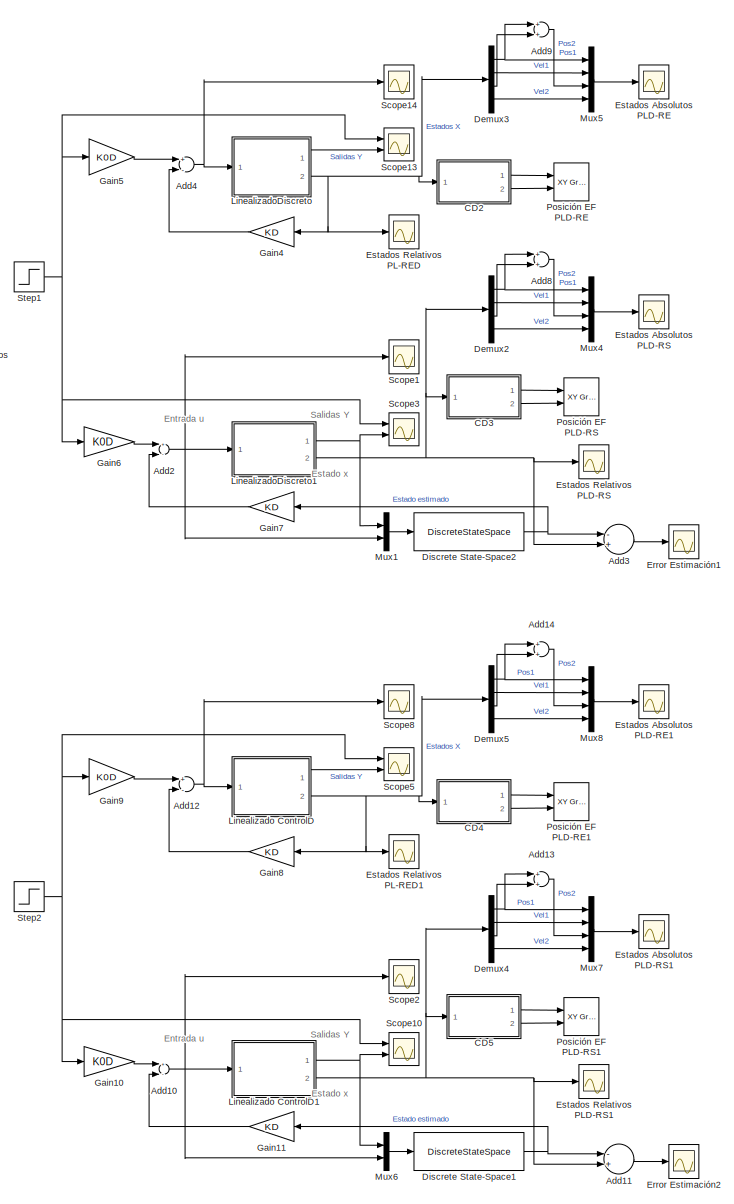
[diagram: root canvas - part 1/2, right side, full height]
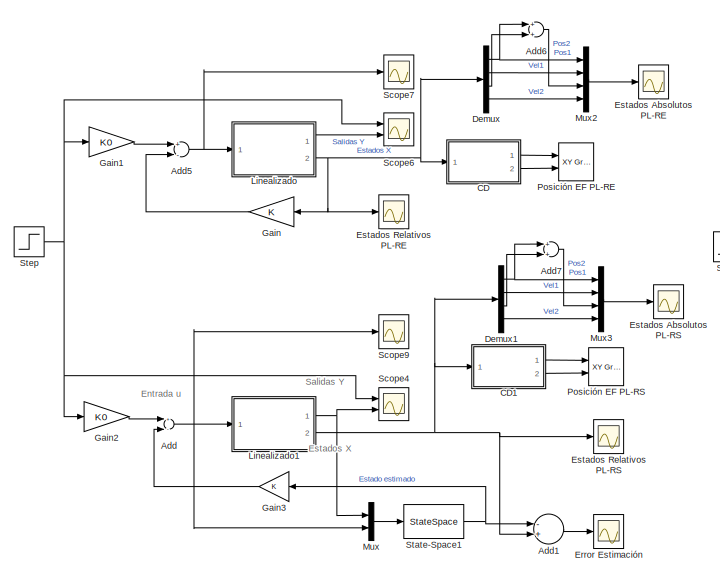
[diagram: root canvas - part 2/2, top left region]
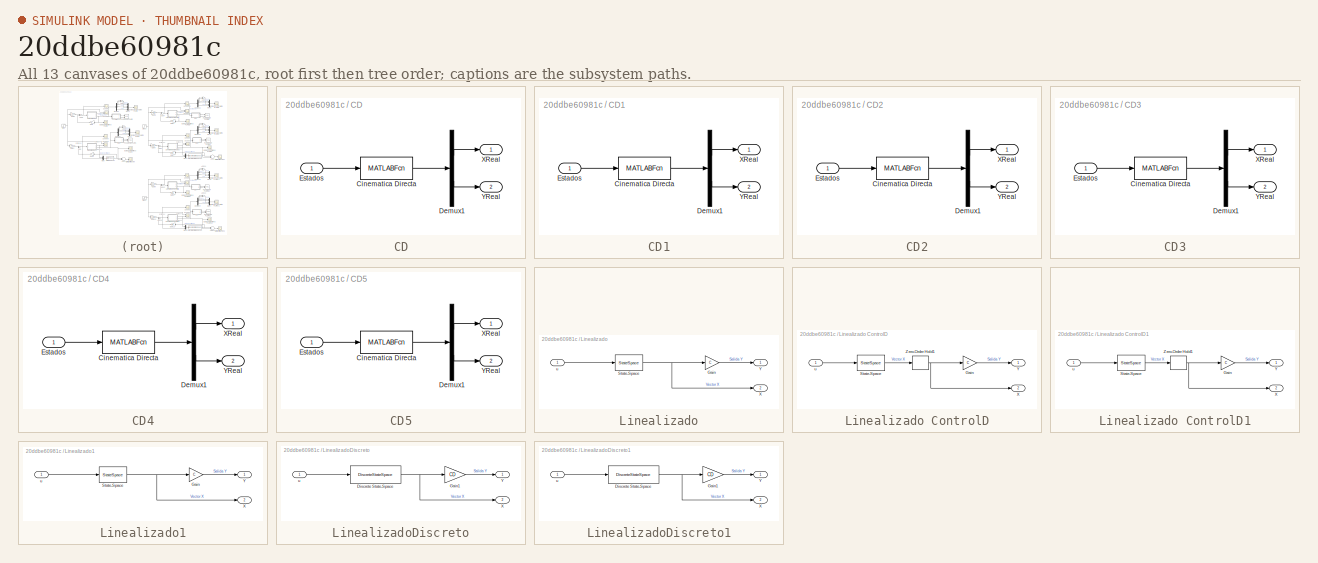
[diagram: thumbnail index - all 13 canvases of the model, root first then tree order]
MODEL slx_20ddbe60981c
KIND model
CONFIG AbsTol = auto
CONFIG EnableMultiTasking = off
CONFIG FixedStep = 0.01
CONFIG MaxStep = auto
CONFIG MinStep = auto
CONFIG RelTol = 1e-3
CONFIG SampleTimeConstraint = Unconstrained
CONFIG Solver = ode4
CONFIG SolverName = ode4
CONFIG StartTime = 0.0
CONFIG StopTime = ts
BLOCK [Sum] Add
  InputSameDT = off
  Inputs = +-
  OutDataTypeStr = Inherit: Inherit via internal rule
  Ports = [2, 1]
  SaturateOnIntegerOverflow = off
BLOCK [Sum] Add1
  InputSameDT = off
  Inputs = -+
  OutDataTypeStr = Inherit: Inherit via internal rule
  Ports = [2, 1]
  SaturateOnIntegerOverflow = off
BLOCK [Sum] Add10
  InputSameDT = off
  Inputs = +-
  OutDataTypeStr = Inherit: Inherit via internal rule
  Ports = [2, 1]
  SaturateOnIntegerOverflow = off
BLOCK [Sum] Add11
  InputSameDT = off
  Inputs = -+
  OutDataTypeStr = Inherit: Inherit via internal rule
  Ports = [2, 1]
  SaturateOnIntegerOverflow = off
BLOCK [Sum] Add12
  InputSameDT = off
  Inputs = +-
  OutDataTypeStr = Inherit: Inherit via internal rule
  Ports = [2, 1]
  SaturateOnIntegerOverflow = off
BLOCK [Sum] Add13
  InputSameDT = off
  OutDataTypeStr = Inherit: Inherit via internal rule
  Ports = [2, 1]
  SaturateOnIntegerOverflow = off
BLOCK [Sum] Add14
  InputSameDT = off
  OutDataTypeStr = Inherit: Inherit via internal rule
  Ports = [2, 1]
  SaturateOnIntegerOverflow = off
BLOCK [Sum] Add2
  InputSameDT = off
  Inputs = +-
  OutDataTypeStr = Inherit: Inherit via internal rule
  Ports = [2, 1]
  SaturateOnIntegerOverflow = off
BLOCK [Sum] Add3
  InputSameDT = off
  Inputs = -+
  OutDataTypeStr = Inherit: Inherit via internal rule
  Ports = [2, 1]
  SaturateOnIntegerOverflow = off
BLOCK [Sum] Add4
  InputSameDT = off
  Inputs = +-
  OutDataTypeStr = Inherit: Inherit via internal rule
  Ports = [2, 1]
  SaturateOnIntegerOverflow = off
BLOCK [Sum] Add5
  InputSameDT = off
  Inputs = +-
  OutDataTypeStr = Inherit: Inherit via internal rule
  Ports = [2, 1]
  SaturateOnIntegerOverflow = off
BLOCK [Sum] Add6
  InputSameDT = off
  OutDataTypeStr = Inherit: Inherit via internal rule
  Ports = [2, 1]
  SaturateOnIntegerOverflow = off
BLOCK [Sum] Add7
  InputSameDT = off
  OutDataTypeStr = Inherit: Inherit via internal rule
  Ports = [2, 1]
  SaturateOnIntegerOverflow = off
BLOCK [Sum] Add8
  InputSameDT = off
  OutDataTypeStr = Inherit: Inherit via internal rule
  Ports = [2, 1]
  SaturateOnIntegerOverflow = off
BLOCK [Sum] Add9
  InputSameDT = off
  OutDataTypeStr = Inherit: Inherit via internal rule
  Ports = [2, 1]
  SaturateOnIntegerOverflow = off
BLOCK [SubSystem] CD
  Ports = [1, 2]
  RequestExecContextInheritance = off
  TreatAsAtomicUnit = on
BLOCK [MATLABFcn] CD/Cinematica Directa
  MATLABFcn = CinematicaDirecta
  OutputDimensions = 2
  Ports = [1, 1]
BLOCK [Demux] CD/Demux1
  DisplayOption = bar
  Outputs = 2
  Ports = [1, 2]
BLOCK [Inport] CD/Estados
  IconDisplay = Port number
BLOCK [Outport] CD/XReal
  IconDisplay = Port number
  VectorParamsAs1DForOutWhenUnconnected = off
BLOCK [Outport] CD/YReal
  IconDisplay = Port number
  Port = 2
  VectorParamsAs1DForOutWhenUnconnected = off
BLOCK [SubSystem] CD1
  Ports = [1, 2]
  RequestExecContextInheritance = off
  TreatAsAtomicUnit = on
BLOCK [MATLABFcn] CD1/Cinematica Directa
  MATLABFcn = CinematicaDirecta
  OutputDimensions = 2
  Ports = [1, 1]
BLOCK [Demux] CD1/Demux1
  DisplayOption = bar
  Outputs = 2
  Ports = [1, 2]
BLOCK [Inport] CD1/Estados
  IconDisplay = Port number
BLOCK [Outport] CD1/XReal
  IconDisplay = Port number
  VectorParamsAs1DForOutWhenUnconnected = off
BLOCK [Outport] CD1/YReal
  IconDisplay = Port number
  Port = 2
  VectorParamsAs1DForOutWhenUnconnected = off
BLOCK [SubSystem] CD2
  Ports = [1, 2]
  RequestExecContextInheritance = off
  TreatAsAtomicUnit = on
BLOCK [MATLABFcn] CD2/Cinematica Directa
  MATLABFcn = CinematicaDirecta
  OutputDimensions = 2
  Ports = [1, 1]
BLOCK [Demux] CD2/Demux1
  DisplayOption = bar
  Outputs = 2
  Ports = [1, 2]
BLOCK [Inport] CD2/Estados
  IconDisplay = Port number
BLOCK [Outport] CD2/XReal
  IconDisplay = Port number
  VectorParamsAs1DForOutWhenUnconnected = off
BLOCK [Outport] CD2/YReal
  IconDisplay = Port number
  Port = 2
  VectorParamsAs1DForOutWhenUnconnected = off
BLOCK [SubSystem] CD3
  Ports = [1, 2]
  RequestExecContextInheritance = off
  TreatAsAtomicUnit = on
BLOCK [MATLABFcn] CD3/Cinematica Directa
  MATLABFcn = CinematicaDirecta
  OutputDimensions = 2
  Ports = [1, 1]
BLOCK [Demux] CD3/Demux1
  DisplayOption = bar
  Outputs = 2
  Ports = [1, 2]
BLOCK [Inport] CD3/Estados
  IconDisplay = Port number
BLOCK [Outport] CD3/XReal
  IconDisplay = Port number
  VectorParamsAs1DForOutWhenUnconnected = off
BLOCK [Outport] CD3/YReal
  IconDisplay = Port number
  Port = 2
  VectorParamsAs1DForOutWhenUnconnected = off
BLOCK [SubSystem] CD4
  Ports = [1, 2]
  RequestExecContextInheritance = off
  TreatAsAtomicUnit = on
BLOCK [MATLABFcn] CD4/Cinematica Directa
  MATLABFcn = CinematicaDirecta
  OutputDimensions = 2
  Ports = [1, 1]
BLOCK [Demux] CD4/Demux1
  DisplayOption = bar
  Outputs = 2
  Ports = [1, 2]
BLOCK [Inport] CD4/Estados
  IconDisplay = Port number
BLOCK [Outport] CD4/XReal
  IconDisplay = Port number
  VectorParamsAs1DForOutWhenUnconnected = off
BLOCK [Outport] CD4/YReal
  IconDisplay = Port number
  Port = 2
  VectorParamsAs1DForOutWhenUnconnected = off
BLOCK [SubSystem] CD5
  Ports = [1, 2]
  RequestExecContextInheritance = off
  TreatAsAtomicUnit = on
BLOCK [MATLABFcn] CD5/Cinematica Directa
  MATLABFcn = CinematicaDirecta
  OutputDimensions = 2
  Ports = [1, 1]
BLOCK [Demux] CD5/Demux1
  DisplayOption = bar
  Outputs = 2
  Ports = [1, 2]
BLOCK [Inport] CD5/Estados
  IconDisplay = Port number
BLOCK [Outport] CD5/XReal
  IconDisplay = Port number
  VectorParamsAs1DForOutWhenUnconnected = off
BLOCK [Outport] CD5/YReal
  IconDisplay = Port number
  Port = 2
  VectorParamsAs1DForOutWhenUnconnected = off
BLOCK [Demux] Demux
  DisplayOption = bar
  Ports = [1, 4]
BLOCK [Demux] Demux1
  DisplayOption = bar
  Ports = [1, 4]
BLOCK [Demux] Demux2
  DisplayOption = bar
  Ports = [1, 4]
BLOCK [Demux] Demux3
  DisplayOption = bar
  Ports = [1, 4]
BLOCK [Demux] Demux4
  DisplayOption = bar
  Ports = [1, 4]
BLOCK [Demux] Demux5
  DisplayOption = bar
  Ports = [1, 4]
BLOCK [DiscreteStateSpace] Discrete State-Space1
  A = AD-LD*CD
  B = [LD BD]
  C = eye(4)
  D = zeros(4,2)
  InitialCondition = XI
  SampleTime = tm
BLOCK [DiscreteStateSpace] Discrete State-Space2
  A = AD-LD*CD
  B = [LD BD]
  C = eye(4)
  D = zeros(4,2)
  InitialCondition = XI
  SampleTime = tm
BLOCK [Scope] Error Estimación
  Floating = off
  NumInputPorts = 1
  Ports = [1]
  ScopeSpecificationString = Simulink.scopes.TimeScopeBlockCfg('CurrentConfiguration', extmgr.ConfigurationSet(extmgr.Configuration('Core','General UI',true,'FigureColor',[0 0 0]),extmgr.Configuration('Core','Source UI',true),extmgr.Configuration('Sources','WiredSimulink',true,'DataLoggingVariableName','ScopeData6'),extmgr.Configuration('Visuals','Time Domain',true,'SerializedDisplays',{struct('MinYLimReal','-0.000000000007',...<+2144ch>
BLOCK [Scope] Error Estimación1
  Floating = off
  NumInputPorts = 1
  Ports = [1]
  ScopeSpecificationString = Simulink.scopes.TimeScopeBlockCfg('CurrentConfiguration', extmgr.ConfigurationSet(extmgr.Configuration('Core','General UI',true,'FigureColor',[0 0 0]),extmgr.Configuration('Core','Source UI',true),extmgr.Configuration('Sources','WiredSimulink',true,'DataLoggingVariableName','ScopeData7'),extmgr.Configuration('Visuals','Time Domain',true,'SerializedDisplays',{struct('MinYLimReal','-0.000000000005',...<+2144ch>
BLOCK [Scope] Error Estimación2
  Floating = off
  NumInputPorts = 1
  Ports = [1]
  ScopeSpecificationString = Simulink.scopes.TimeScopeBlockCfg('CurrentConfiguration', extmgr.ConfigurationSet(extmgr.Configuration('Core','General UI',true,'FigureColor',[0 0 0]),extmgr.Configuration('Core','Source UI',true),extmgr.Configuration('Sources','WiredSimulink',true,'DataLoggingVariableName','ScopeData2'),extmgr.Configuration('Visuals','Time Domain',true,'SerializedDisplays',{struct('MinYLimReal','-0.13705','MaxYLi...<+2092ch>
BLOCK [Scope] Estados Absolutos PL-RE
  Floating = off
  NumInputPorts = 1
  Ports = [1]
  ScopeSpecificationString = Simulink.scopes.TimeScopeBlockCfg('CurrentConfiguration', extmgr.ConfigurationSet(extmgr.Configuration('Core','General UI',true,'FigureColor',[0 0 0]),extmgr.Configuration('Core','Source UI',true),extmgr.Configuration('Sources','WiredSimulink',true,'DataLoggingVariableName','ScopeData1'),extmgr.Configuration('Visuals','Time Domain',true,'SerializedDisplays',{struct('MinYLimReal','-5.35288','MaxYLi...<+2080ch>
BLOCK [Scope] Estados Absolutos PL-RS
  Floating = off
  NumInputPorts = 1
  Ports = [1]
  ScopeSpecificationString = Simulink.scopes.TimeScopeBlockCfg('CurrentConfiguration', extmgr.ConfigurationSet(extmgr.Configuration('Core','General UI',true,'FigureColor',[0 0 0]),extmgr.Configuration('Core','Source UI',true),extmgr.Configuration('Sources','WiredSimulink',true,'DataLoggingVariableName','ScopeData2'),extmgr.Configuration('Visuals','Time Domain',true,'SerializedDisplays',{struct('MinYLimReal','-1.78593','MaxYLi...<+2080ch>
BLOCK [Scope] Estados Absolutos PLD-RE
  Floating = off
  NumInputPorts = 1
  Ports = [1]
  ScopeSpecificationString = Simulink.scopes.TimeScopeBlockCfg('CurrentConfiguration', extmgr.ConfigurationSet(extmgr.Configuration('Core','General UI',true,'FigureColor',[0 0 0]),extmgr.Configuration('Core','Source UI',true),extmgr.Configuration('Sources','WiredSimulink',true,'DataLoggingVariableName','ScopeData4'),extmgr.Configuration('Visuals','Time Domain',true,'SerializedDisplays',{struct('MinYLimReal','-3.14555','MaxYLi...<+2080ch>
BLOCK [Scope] Estados Absolutos PLD-RE1
  Floating = off
  NumInputPorts = 1
  Ports = [1]
  ScopeSpecificationString = Simulink.scopes.TimeScopeBlockCfg('CurrentConfiguration', extmgr.ConfigurationSet(extmgr.Configuration('Core','General UI',true,'FigureColor',[0 0 0]),extmgr.Configuration('Core','Source UI',true),extmgr.Configuration('Sources','WiredSimulink',true,'DataLoggingVariableName','ScopeData3'),extmgr.Configuration('Visuals','Time Domain',true,'SerializedDisplays',{struct('MinYLimReal','-3.14555','MaxYLi...<+2080ch>
BLOCK [Scope] Estados Absolutos PLD-RS
  Floating = off
  NumInputPorts = 1
  Ports = [1]
  ScopeSpecificationString = Simulink.scopes.TimeScopeBlockCfg('CurrentConfiguration', extmgr.ConfigurationSet(extmgr.Configuration('Core','General UI',true,'FigureColor',[0 0 0]),extmgr.Configuration('Core','Source UI',true),extmgr.Configuration('Sources','WiredSimulink',true,'DataLoggingVariableName','ScopeData3'),extmgr.Configuration('Visuals','Time Domain',true,'SerializedDisplays',{struct('MinYLimReal','-1.05715','MaxYLi...<+2080ch>
BLOCK [Scope] Estados Absolutos PLD-RS1
  Floating = off
  NumInputPorts = 1
  Ports = [1]
  ScopeSpecificationString = Simulink.scopes.TimeScopeBlockCfg('CurrentConfiguration', extmgr.ConfigurationSet(extmgr.Configuration('Core','General UI',true,'FigureColor',[0 0 0]),extmgr.Configuration('Core','Source UI',true),extmgr.Configuration('Sources','WiredSimulink',true,'DataLoggingVariableName','ScopeData4'),extmgr.Configuration('Visuals','Time Domain',true,'SerializedDisplays',{struct('MinYLimReal','-1.05715','MaxYLi...<+2080ch>
BLOCK [Scope] Estados Relativos PL-RE
  Floating = off
  NumInputPorts = 1
  Ports = [1]
  ScopeSpecificationString = Simulink.scopes.TimeScopeBlockCfg('CurrentConfiguration', extmgr.ConfigurationSet(extmgr.Configuration('Core','General UI',true,'FigureColor',[0 0 0]),extmgr.Configuration('Core','Source UI',true),extmgr.Configuration('Sources','WiredSimulink',true,'DataLoggingVariableName','ScopeData1'),extmgr.Configuration('Visuals','Time Domain',true,'SerializedDisplays',{struct('MinYLimReal','-14.56887','MaxYL...<+2114ch>
BLOCK [Scope] Estados Relativos PL-RED
  Floating = off
  NumInputPorts = 1
  Ports = [1]
  ScopeSpecificationString = Simulink.scopes.TimeScopeBlockCfg('CurrentConfiguration', extmgr.ConfigurationSet(extmgr.Configuration('Core','General UI',true,'FigureColor',[0 0 0]),extmgr.Configuration('Core','Source UI',true),extmgr.Configuration('Sources','WiredSimulink',true,'DataLoggingVariableName','ScopeData9'),extmgr.Configuration('Visuals','Time Domain',true,'SerializedDisplays',{struct('MinYLimReal','-36.95739','MaxYL...<+2114ch>
BLOCK [Scope] Estados Relativos PL-RED1
  Floating = off
  NumInputPorts = 1
  Ports = [1]
  ScopeSpecificationString = Simulink.scopes.TimeScopeBlockCfg('CurrentConfiguration', extmgr.ConfigurationSet(extmgr.Configuration('Core','General UI',true,'FigureColor',[0 0 0]),extmgr.Configuration('Core','Source UI',true),extmgr.Configuration('Sources','WiredSimulink',true,'DataLoggingVariableName','ScopeData5'),extmgr.Configuration('Visuals','Time Domain',true,'SerializedDisplays',{struct('MinYLimReal','-36.95739','MaxYL...<+2114ch>
BLOCK [Scope] Estados Relativos PL-RS
  Floating = off
  NumInputPorts = 1
  Ports = [1]
  ScopeSpecificationString = Simulink.scopes.TimeScopeBlockCfg('CurrentConfiguration', extmgr.ConfigurationSet(extmgr.Configuration('Core','General UI',true,'FigureColor',[0 0 0]),extmgr.Configuration('Core','Source UI',true),extmgr.Configuration('Sources','WiredSimulink',true,'DataLoggingVariableName','ScopeData5'),extmgr.Configuration('Visuals','Time Domain',true,'SerializedDisplays',{struct('MinYLimReal','-36.95739','MaxYL...<+2162ch>
BLOCK [Scope] Estados Relativos PLD-RS
  Floating = off
  NumInputPorts = 1
  Ports = [1]
  ScopeSpecificationString = Simulink.scopes.TimeScopeBlockCfg('CurrentConfiguration', extmgr.ConfigurationSet(extmgr.Configuration('Core','General UI',true,'FigureColor',[0 0 0]),extmgr.Configuration('Core','Source UI',true),extmgr.Configuration('Sources','WiredSimulink',true,'DataLoggingVariableName','ScopeData8'),extmgr.Configuration('Visuals','Time Domain',true,'SerializedDisplays',{struct('MinYLimReal','-36.95739','MaxYL...<+2114ch>
BLOCK [Scope] Estados Relativos PLD-RS1
  Floating = off
  NumInputPorts = 1
  Ports = [1]
  ScopeSpecificationString = Simulink.scopes.TimeScopeBlockCfg('CurrentConfiguration', extmgr.ConfigurationSet(extmgr.Configuration('Core','General UI',true,'FigureColor',[0 0 0]),extmgr.Configuration('Core','Source UI',true),extmgr.Configuration('Sources','WiredSimulink',true,'DataLoggingVariableName','ScopeData6'),extmgr.Configuration('Visuals','Time Domain',true,'SerializedDisplays',{struct('MinYLimReal','-36.95739','MaxYL...<+2114ch>
BLOCK [Gain] Gain
  Gain = K
  Multiplication = Matrix(K*u)
  OutDataTypeStr = Inherit: Inherit via internal rule
  ParamDataTypeStr = Inherit: Inherit via internal rule
  SaturateOnIntegerOverflow = off
BLOCK [Gain] Gain1
  Gain = K0
  Multiplication = Matrix(K*u)
  OutDataTypeStr = Inherit: Inherit via internal rule
  ParamDataTypeStr = Inherit: Inherit via internal rule
  SaturateOnIntegerOverflow = off
BLOCK [Gain] Gain10
  Gain = K0D
  Multiplication = Matrix(K*u)
  OutDataTypeStr = Inherit: Inherit via internal rule
  ParamDataTypeStr = Inherit: Inherit via internal rule
  SaturateOnIntegerOverflow = off
BLOCK [Gain] Gain11
  Gain = KD
  Multiplication = Matrix(K*u)
  OutDataTypeStr = Inherit: Inherit via internal rule
  ParamDataTypeStr = Inherit: Inherit via internal rule
  SaturateOnIntegerOverflow = off
BLOCK [Gain] Gain2
  Gain = K0
  Multiplication = Matrix(K*u)
  OutDataTypeStr = Inherit: Inherit via internal rule
  ParamDataTypeStr = Inherit: Inherit via internal rule
  SaturateOnIntegerOverflow = off
BLOCK [Gain] Gain3
  Gain = K
  Multiplication = Matrix(K*u)
  OutDataTypeStr = Inherit: Inherit via internal rule
  ParamDataTypeStr = Inherit: Inherit via internal rule
  SaturateOnIntegerOverflow = off
BLOCK [Gain] Gain4
  Gain = KD
  Multiplication = Matrix(K*u)
  OutDataTypeStr = Inherit: Inherit via internal rule
  ParamDataTypeStr = Inherit: Inherit via internal rule
  SaturateOnIntegerOverflow = off
BLOCK [Gain] Gain5
  Gain = K0D
  Multiplication = Matrix(K*u)
  OutDataTypeStr = Inherit: Inherit via internal rule
  ParamDataTypeStr = Inherit: Inherit via internal rule
  SaturateOnIntegerOverflow = off
BLOCK [Gain] Gain6
  Gain = K0D
  Multiplication = Matrix(K*u)
  OutDataTypeStr = Inherit: Inherit via internal rule
  ParamDataTypeStr = Inherit: Inherit via internal rule
  SaturateOnIntegerOverflow = off
BLOCK [Gain] Gain7
  Gain = KD
  Multiplication = Matrix(K*u)
  OutDataTypeStr = Inherit: Inherit via internal rule
  ParamDataTypeStr = Inherit: Inherit via internal rule
  SaturateOnIntegerOverflow = off
BLOCK [Gain] Gain8
  Gain = KD
  Multiplication = Matrix(K*u)
  OutDataTypeStr = Inherit: Inherit via internal rule
  ParamDataTypeStr = Inherit: Inherit via internal rule
  SaturateOnIntegerOverflow = off
BLOCK [Gain] Gain9
  Gain = K0D
  Multiplication = Matrix(K*u)
  OutDataTypeStr = Inherit: Inherit via internal rule
  ParamDataTypeStr = Inherit: Inherit via internal rule
  SaturateOnIntegerOverflow = off
BLOCK [SubSystem] Linealizado
  Ports = [1, 2]
  RequestExecContextInheritance = off
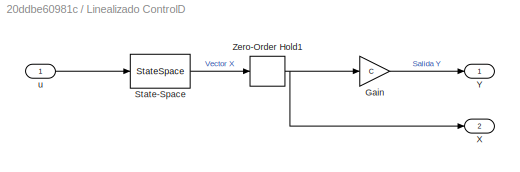
BLOCK [SubSystem] Linealizado ControlD
  Ports = [1, 2]
  RequestExecContextInheritance = off
BLOCK [Gain] Linealizado ControlD/Gain
  Gain = C
  Multiplication = Matrix(K*u)
  OutDataTypeStr = Inherit: Inherit via internal rule
  ParamDataTypeStr = Inherit: Inherit via internal rule
  SaturateOnIntegerOverflow = off
BLOCK [StateSpace] Linealizado ControlD/State-Space
  A = Al
  B = Bl
  C = eye(4)
  D = zeros(4,1)
  InitialCondition = XI
  Ports = [1, 1]
BLOCK [Outport] Linealizado ControlD/X
  IconDisplay = Port number
  Port = 2
BLOCK [Outport] Linealizado ControlD/Y
  IconDisplay = Port number
BLOCK [ZeroOrderHold] Linealizado ControlD/Zero-Order Hold1
  SampleTime = tm
BLOCK [Inport] Linealizado ControlD/u
  IconDisplay = Port number
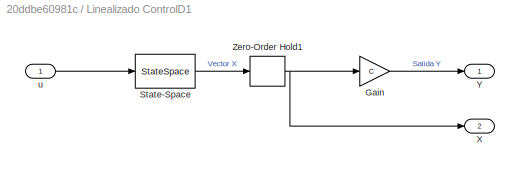
BLOCK [SubSystem] Linealizado ControlD1
  Ports = [1, 2]
  RequestExecContextInheritance = off
BLOCK [Gain] Linealizado ControlD1/Gain
  Gain = C
  Multiplication = Matrix(K*u)
  OutDataTypeStr = Inherit: Inherit via internal rule
  ParamDataTypeStr = Inherit: Inherit via internal rule
  SaturateOnIntegerOverflow = off
BLOCK [StateSpace] Linealizado ControlD1/State-Space
  A = Al
  B = Bl
  C = eye(4)
  D = zeros(4,1)
  InitialCondition = XI
  Ports = [1, 1]
BLOCK [Outport] Linealizado ControlD1/X
  IconDisplay = Port number
  Port = 2
BLOCK [Outport] Linealizado ControlD1/Y
  IconDisplay = Port number
BLOCK [ZeroOrderHold] Linealizado ControlD1/Zero-Order Hold1
  SampleTime = tm
BLOCK [Inport] Linealizado ControlD1/u
  IconDisplay = Port number
BLOCK [Gain] Linealizado/Gain
  Gain = C
  Multiplication = Matrix(K*u)
  OutDataTypeStr = Inherit: Inherit via internal rule
  ParamDataTypeStr = Inherit: Inherit via internal rule
  SaturateOnIntegerOverflow = off
BLOCK [StateSpace] Linealizado/State-Space
  A = Al
  B = Bl
  C = eye(4)
  D = zeros(4,1)
  InitialCondition = XI
  Ports = [1, 1]
BLOCK [Outport] Linealizado/X
  IconDisplay = Port number
  Port = 2
BLOCK [Outport] Linealizado/Y
  IconDisplay = Port number
BLOCK [Inport] Linealizado/u
  IconDisplay = Port number
BLOCK [SubSystem] Linealizado1
  Ports = [1, 2]
  RequestExecContextInheritance = off
BLOCK [Gain] Linealizado1/Gain
  Gain = C
  Multiplication = Matrix(K*u)
  OutDataTypeStr = Inherit: Inherit via internal rule
  ParamDataTypeStr = Inherit: Inherit via internal rule
  SaturateOnIntegerOverflow = off
BLOCK [StateSpace] Linealizado1/State-Space
  A = Al
  B = Bl
  C = eye(4)
  D = zeros(4,1)
  InitialCondition = XI
  Ports = [1, 1]
BLOCK [Outport] Linealizado1/X
  IconDisplay = Port number
  Port = 2
BLOCK [Outport] Linealizado1/Y
  IconDisplay = Port number
BLOCK [Inport] Linealizado1/u
  IconDisplay = Port number
BLOCK [SubSystem] LinealizadoDiscreto
  Ports = [1, 2]
  RequestExecContextInheritance = off
BLOCK [DiscreteStateSpace] LinealizadoDiscreto/Discrete State-Space
  A = AD
  B = BD
  C = eye(4)
  D = zeros(4,1)
  InitialCondition = XI
  SampleTime = tm
BLOCK [Gain] LinealizadoDiscreto/Gain1
  Gain = CD
  Multiplication = Matrix(K*u)
  OutDataTypeStr = Inherit: Inherit via internal rule
  ParamDataTypeStr = Inherit: Inherit via internal rule
  SaturateOnIntegerOverflow = off
BLOCK [Outport] LinealizadoDiscreto/X
  IconDisplay = Port number
  Port = 2
BLOCK [Outport] LinealizadoDiscreto/Y
  IconDisplay = Port number
BLOCK [Inport] LinealizadoDiscreto/u
  IconDisplay = Port number
BLOCK [SubSystem] LinealizadoDiscreto1
  Ports = [1, 2]
  RequestExecContextInheritance = off
BLOCK [DiscreteStateSpace] LinealizadoDiscreto1/Discrete State-Space
  A = AD
  B = BD
  C = eye(4)
  D = zeros(4,1)
  InitialCondition = XI
  SampleTime = tm
BLOCK [Gain] LinealizadoDiscreto1/Gain1
  Gain = CD
  Multiplication = Matrix(K*u)
  OutDataTypeStr = Inherit: Inherit via internal rule
  ParamDataTypeStr = Inherit: Inherit via internal rule
  SaturateOnIntegerOverflow = off
BLOCK [Outport] LinealizadoDiscreto1/X
  IconDisplay = Port number
  Port = 2
BLOCK [Outport] LinealizadoDiscreto1/Y
  IconDisplay = Port number
BLOCK [Inport] LinealizadoDiscreto1/u
  IconDisplay = Port number
BLOCK [Mux] Mux
  DisplayOption = bar
  Inputs = 2
  Ports = [2, 1]
BLOCK [Mux] Mux1
  DisplayOption = bar
  Inputs = 2
  Ports = [2, 1]
BLOCK [Mux] Mux2
  DisplayOption = bar
  Ports = [4, 1]
BLOCK [Mux] Mux3
  DisplayOption = bar
  Ports = [4, 1]
BLOCK [Mux] Mux4
  DisplayOption = bar
  Ports = [4, 1]
BLOCK [Mux] Mux5
  DisplayOption = bar
  Ports = [4, 1]
BLOCK [Mux] Mux6
  DisplayOption = bar
  Inputs = 2
  Ports = [2, 1]
BLOCK [Mux] Mux7
  DisplayOption = bar
  Ports = [4, 1]
BLOCK [Mux] Mux8
  DisplayOption = bar
  Ports = [4, 1]
BLOCK [Reference] Posición EF PL-RE  REF=simulink/Sinks/XY Graph
  Ports = [2]
  SourceBlock = simulink/Sinks/XY Graph
  SourceProductBaseCode = SL
  SourceProductName = Simulink
  SourceType = XY scope.
BLOCK [Reference] Posición EF PL-RS  REF=simulink/Sinks/XY Graph
  Ports = [2]
  SourceBlock = simulink/Sinks/XY Graph
  SourceProductBaseCode = SL
  SourceProductName = Simulink
  SourceType = XY scope.
BLOCK [Reference] Posición EF PLD-RE  REF=simulink/Sinks/XY Graph
  Ports = [2]
  SourceBlock = simulink/Sinks/XY Graph
  SourceProductBaseCode = SL
  SourceProductName = Simulink
  SourceType = XY scope.
BLOCK [Reference] Posición EF PLD-RE1  REF=simulink/Sinks/XY Graph
  Ports = [2]
  SourceBlock = simulink/Sinks/XY Graph
  SourceProductBaseCode = SL
  SourceProductName = Simulink
  SourceType = XY scope.
BLOCK [Reference] Posición EF PLD-RS  REF=simulink/Sinks/XY Graph
  Ports = [2]
  SourceBlock = simulink/Sinks/XY Graph
  SourceProductBaseCode = SL
  SourceProductName = Simulink
  SourceType = XY scope.
BLOCK [Reference] Posición EF PLD-RS1  REF=simulink/Sinks/XY Graph
  Ports = [2]
  SourceBlock = simulink/Sinks/XY Graph
  SourceProductBaseCode = SL
  SourceProductName = Simulink
  SourceType = XY scope.
BLOCK [Scope] Scope1
  Floating = off
  NumInputPorts = 1
  Ports = [1]
  ScopeSpecificationString = Simulink.scopes.TimeScopeBlockCfg('CurrentConfiguration', extmgr.ConfigurationSet(extmgr.Configuration('Core','General UI',true,'FigureColor',[0 0 0]),extmgr.Configuration('Core','Source UI',true),extmgr.Configuration('Sources','WiredSimulink',true,'DataLoggingVariableName','ScopeData1'),extmgr.Configuration('Visuals','Time Domain',true,'SerializedDisplays',{struct('MinYLimReal','-12.48847','MaxYL...<+1681ch>
BLOCK [Scope] Scope10
  Floating = off
  NumInputPorts = 2
  Ports = [2]
  ScopeSpecificationString = Simulink.scopes.TimeScopeBlockCfg('CurrentConfiguration', extmgr.ConfigurationSet(extmgr.Configuration('Core','General UI',true,'FigureColor',[0 0 0]),extmgr.Configuration('Core','Source UI',true),extmgr.Configuration('Sources','WiredSimulink',true,'DataLoggingVariableName','ScopeData7'),extmgr.Configuration('Visuals','Time Domain',true,'SerializedDisplays',{struct('MinYLimReal','-5.20709','MaxYLi...<+1846ch>
BLOCK [Scope] Scope13
  Floating = off
  NumInputPorts = 2
  Ports = [2]
  ScopeSpecificationString = Simulink.scopes.TimeScopeBlockCfg('CurrentConfiguration', extmgr.ConfigurationSet(extmgr.Configuration('Core','General UI',true,'FigureColor',[0 0 0]),extmgr.Configuration('Core','Source UI',true),extmgr.Configuration('Sources','WiredSimulink',true,'DataLoggingVariableName','ScopeData10'),extmgr.Configuration('Visuals','Time Domain',true,'SerializedDisplays',{struct('MinYLimReal','-5.22258','MaxYL...<+1826ch>
BLOCK [Scope] Scope14
  Floating = off
  NumInputPorts = 1
  Ports = [1]
  ScopeSpecificationString = Simulink.scopes.TimeScopeBlockCfg('CurrentConfiguration', extmgr.ConfigurationSet(extmgr.Configuration('Core','General UI',true,'FigureColor',[0 0 0]),extmgr.Configuration('Core','Source UI',true),extmgr.Configuration('Sources','WiredSimulink',true,'DataLoggingVariableName','ScopeData11'),extmgr.Configuration('Visuals','Time Domain',true,'SerializedDisplays',{struct('MinYLimReal','-12.48847','MaxY...<+1682ch>
BLOCK [Scope] Scope2
  Floating = off
  NumInputPorts = 1
  Ports = [1]
  ScopeSpecificationString = Simulink.scopes.TimeScopeBlockCfg('CurrentConfiguration', extmgr.ConfigurationSet(extmgr.Configuration('Core','General UI',true,'FigureColor',[0 0 0]),extmgr.Configuration('Core','Source UI',true),extmgr.Configuration('Sources','WiredSimulink',true,'DataLoggingVariableName','ScopeData8'),extmgr.Configuration('Visuals','Time Domain',true,'SerializedDisplays',{struct('MinYLimReal','-12.49646','MaxYL...<+1682ch>
BLOCK [Scope] Scope3
  Floating = off
  NumInputPorts = 2
  Ports = [2]
  ScopeSpecificationString = Simulink.scopes.TimeScopeBlockCfg('CurrentConfiguration', extmgr.ConfigurationSet(extmgr.Configuration('Core','General UI',true,'FigureColor',[0 0 0]),extmgr.Configuration('Core','Source UI',true),extmgr.Configuration('Sources','WiredSimulink',true,'DataLoggingVariableName','ScopeData13'),extmgr.Configuration('Visuals','Time Domain',true,'SerializedDisplays',{struct('MinYLimReal','-5.22258','MaxYL...<+1846ch>
BLOCK [Scope] Scope4
  Floating = off
  NumInputPorts = 2
  Ports = [2]
  ScopeSpecificationString = Simulink.scopes.TimeScopeBlockCfg('CurrentConfiguration', extmgr.ConfigurationSet(extmgr.Configuration('Core','General UI',true,'FigureColor',[0 0 0]),extmgr.Configuration('Core','Source UI',true),extmgr.Configuration('Sources','WiredSimulink',true,'DataLoggingVariableName','ScopeData4'),extmgr.Configuration('Visuals','Time Domain',true,'SerializedDisplays',{struct('MinYLimReal','-5.22306','MaxYLi...<+1832ch>
BLOCK [Scope] Scope5
  Floating = off
  NumInputPorts = 2
  Ports = [2]
  ScopeSpecificationString = Simulink.scopes.TimeScopeBlockCfg('CurrentConfiguration', extmgr.ConfigurationSet(extmgr.Configuration('Core','General UI',true,'FigureColor',[0 0 0]),extmgr.Configuration('Core','Source UI',true),extmgr.Configuration('Sources','WiredSimulink',true,'DataLoggingVariableName','ScopeData9'),extmgr.Configuration('Visuals','Time Domain',true,'SerializedDisplays',{struct('MinYLimReal','-5.22285','MaxYLi...<+1825ch>
BLOCK [Scope] Scope6
  Floating = off
  NumInputPorts = 2
  Ports = [2]
  ScopeSpecificationString = Simulink.scopes.TimeScopeBlockCfg('CurrentConfiguration', extmgr.ConfigurationSet(extmgr.Configuration('Core','General UI',true,'FigureColor',[0 0 0]),extmgr.Configuration('Core','Source UI',true),extmgr.Configuration('Sources','WiredSimulink',true,'DataLoggingVariableName','ScopeData2'),extmgr.Configuration('Visuals','Time Domain',true,'SerializedDisplays',{struct('MinYLimReal','-5.22306','MaxYLi...<+1820ch>
BLOCK [Scope] Scope7
  Floating = off
  NumInputPorts = 1
  Ports = [1]
  ScopeSpecificationString = Simulink.scopes.TimeScopeBlockCfg('CurrentConfiguration', extmgr.ConfigurationSet(extmgr.Configuration('Core','General UI',true,'FigureColor',[0 0 0]),extmgr.Configuration('Core','Source UI',true),extmgr.Configuration('Sources','WiredSimulink',true,'DataLoggingVariableName','ScopeData3'),extmgr.Configuration('Visuals','Time Domain',true,'SerializedDisplays',{struct('MinYLimReal','-12.44464','MaxYL...<+1681ch>
BLOCK [Scope] Scope8
  Floating = off
  NumInputPorts = 1
  Ports = [1]
  ScopeSpecificationString = Simulink.scopes.TimeScopeBlockCfg('CurrentConfiguration', extmgr.ConfigurationSet(extmgr.Configuration('Core','General UI',true,'FigureColor',[0 0 0]),extmgr.Configuration('Core','Source UI',true),extmgr.Configuration('Sources','WiredSimulink',true,'DataLoggingVariableName','ScopeData10'),extmgr.Configuration('Visuals','Time Domain',true,'SerializedDisplays',{struct('MinYLimReal','-12.48856','MaxY...<+1683ch>
BLOCK [Scope] Scope9
  Floating = off
  NumInputPorts = 1
  Ports = [1]
  ScopeSpecificationString = Simulink.scopes.TimeScopeBlockCfg('CurrentConfiguration', extmgr.ConfigurationSet(extmgr.Configuration('Core','General UI',true,'FigureColor',[0 0 0]),extmgr.Configuration('Core','Source UI',true),extmgr.Configuration('Sources','WiredSimulink',true,'DataLoggingVariableName','ScopeData6'),extmgr.Configuration('Visuals','Time Domain',true,'SerializedDisplays',{struct('MinYLimReal','-12.44464','MaxYL...<+1680ch>
BLOCK [StateSpace] State-Space1
  A = Al-L*C
  B = [L,Bl]
  C = eye(4)
  D = zeros(4,2)
  InitialCondition = XI
  Ports = [1, 1]
BLOCK [Step] Step
  After = Ref
  SampleTime = 0
  Time = 0
BLOCK [Step] Step1
  After = Ref
  SampleTime = tm
  Time = 0
BLOCK [Step] Step2
  After = Ref
  SampleTime = tm
  Time = 0
ANNOTATION (root): Entrada u
ANNOTATION (root): Estado x
ANNOTATION (root): Estados X
ANNOTATION (root): Salidas Y
NET Add10:1 -> Linealizado ControlD1:1, Mux6:2, Scope2:1
LINE Add11:1 -> Error Estimación2:1
NET Add12:1 -> Linealizado ControlD:1, Scope8:1
LINE Add13:1 -> Mux7:3
LINE Add14:1 -> Mux8:3
LINE Add1:1 -> Error Estimación:1
NET Add2:1 -> LinealizadoDiscreto1:1, Mux1:2, Scope1:1
LINE Add3:1 -> Error Estimación1:1
NET Add4:1 -> LinealizadoDiscreto:1, Scope14:1
NET Add5:1 -> Linealizado:1, Scope7:1
LINE Add6:1 -> Mux2:3
LINE Add7:1 -> Mux3:3
LINE Add8:1 -> Mux4:3
LINE Add9:1 -> Mux5:3
NET Add:1 -> Linealizado1:1, Mux:2, Scope9:1
LINE CD/Cinematica Directa:1 -> CD/Demux1:1
LINE CD/Demux1:1 -> CD/XReal:1
LINE CD/Demux1:2 -> CD/YReal:1
LINE CD/Estados:1 -> CD/Cinematica Directa:1
LINE CD1/Cinematica Directa:1 -> CD1/Demux1:1
LINE CD1/Demux1:1 -> CD1/XReal:1
LINE CD1/Demux1:2 -> CD1/YReal:1
LINE CD1/Estados:1 -> CD1/Cinematica Directa:1
LINE CD1:1 -> Posición EF PL-RS:1
LINE CD1:2 -> Posición EF PL-RS:2
LINE CD2/Cinematica Directa:1 -> CD2/Demux1:1
LINE CD2/Demux1:1 -> CD2/XReal:1
LINE CD2/Demux1:2 -> CD2/YReal:1
LINE CD2/Estados:1 -> CD2/Cinematica Directa:1
LINE CD2:1 -> Posición EF PLD-RE:1
LINE CD2:2 -> Posición EF PLD-RE:2
LINE CD3/Cinematica Directa:1 -> CD3/Demux1:1
LINE CD3/Demux1:1 -> CD3/XReal:1
LINE CD3/Demux1:2 -> CD3/YReal:1
LINE CD3/Estados:1 -> CD3/Cinematica Directa:1
LINE CD3:1 -> Posición EF PLD-RS:1
LINE CD3:2 -> Posición EF PLD-RS:2
LINE CD4/Cinematica Directa:1 -> CD4/Demux1:1
LINE CD4/Demux1:1 -> CD4/XReal:1
LINE CD4/Demux1:2 -> CD4/YReal:1
LINE CD4/Estados:1 -> CD4/Cinematica Directa:1
LINE CD4:1 -> Posición EF PLD-RE1:1
LINE CD4:2 -> Posición EF PLD-RE1:2
LINE CD5/Cinematica Directa:1 -> CD5/Demux1:1
LINE CD5/Demux1:1 -> CD5/XReal:1
LINE CD5/Demux1:2 -> CD5/YReal:1
LINE CD5/Estados:1 -> CD5/Cinematica Directa:1
LINE CD5:1 -> Posición EF PLD-RS1:1
LINE CD5:2 -> Posición EF PLD-RS1:2
LINE CD:1 -> Posición EF PL-RE:1
LINE CD:2 -> Posición EF PL-RE:2
NET Demux1:1 -> Add7:1, Mux3:1
LINE Demux1:2 -> Mux3:2
LINE Demux1:3 -> Add7:2
LINE Demux1:4 -> Mux3:4
NET Demux2:1 -> Add8:1, Mux4:1
LINE Demux2:2 -> Mux4:2
LINE Demux2:3 -> Add8:2
LINE Demux2:4 -> Mux4:4
NET Demux3:1 -> Add9:1, Mux5:1
LINE Demux3:2 -> Mux5:2
LINE Demux3:3 -> Add9:2
LINE Demux3:4 -> Mux5:4
NET Demux4:1 -> Add13:1, Mux7:1
LINE Demux4:2 -> Mux7:2
LINE Demux4:3 -> Add13:2
LINE Demux4:4 -> Mux7:4
NET Demux5:1 -> Add14:1, Mux8:1
LINE Demux5:2 -> Mux8:2
LINE Demux5:3 -> Add14:2
LINE Demux5:4 -> Mux8:4
NET Demux:1 -> Add6:1, Mux2:1
LINE Demux:2 -> Mux2:2
LINE Demux:3 -> Add6:2
LINE Demux:4 -> Mux2:4
NET Discrete State-Space1:1 -> Add11:1, Gain11:1
NET Discrete State-Space2:1 -> Add3:1, Gain7:1
LINE Gain10:1 -> Add10:1
LINE Gain11:1 -> Add10:2
LINE Gain1:1 -> Add5:1
LINE Gain2:1 -> Add:1
LINE Gain3:1 -> Add:2
LINE Gain4:1 -> Add4:2
LINE Gain5:1 -> Add4:1
LINE Gain6:1 -> Add2:1
LINE Gain7:1 -> Add2:2
LINE Gain8:1 -> Add12:2
LINE Gain9:1 -> Add12:1
LINE Gain:1 -> Add5:2
LINE Linealizado ControlD/Gain:1 -> Linealizado ControlD/Y:1
LINE Linealizado ControlD/State-Space:1 -> Linealizado ControlD/Zero-Order Hold1:1
NET Linealizado ControlD/Zero-Order Hold1:1 -> Linealizado ControlD/Gain:1, Linealizado ControlD/X:1
LINE Linealizado ControlD/u:1 -> Linealizado ControlD/State-Space:1
LINE Linealizado ControlD1/Gain:1 -> Linealizado ControlD1/Y:1
LINE Linealizado ControlD1/State-Space:1 -> Linealizado ControlD1/Zero-Order Hold1:1
NET Linealizado ControlD1/Zero-Order Hold1:1 -> Linealizado ControlD1/Gain:1, Linealizado ControlD1/X:1
LINE Linealizado ControlD1/u:1 -> Linealizado ControlD1/State-Space:1
NET Linealizado ControlD1:1 -> Mux6:1, Scope10:2
NET Linealizado ControlD1:2 -> Add11:2, CD5:1, Demux4:1, Estados Relativos PLD-RS1:1
LINE Linealizado ControlD:1 -> Scope5:2
NET Linealizado ControlD:2 -> CD4:1, Demux5:1, Estados Relativos PL-RED1:1, Gain8:1
LINE Linealizado/Gain:1 -> Linealizado/Y:1
NET Linealizado/State-Space:1 -> Linealizado/Gain:1, Linealizado/X:1
LINE Linealizado/u:1 -> Linealizado/State-Space:1
LINE Linealizado1/Gain:1 -> Linealizado1/Y:1
NET Linealizado1/State-Space:1 -> Linealizado1/Gain:1, Linealizado1/X:1
LINE Linealizado1/u:1 -> Linealizado1/State-Space:1
NET Linealizado1:1 -> Mux:1, Scope4:2
NET Linealizado1:2 -> Add1:2, CD1:1, Demux1:1, Estados Relativos PL-RS:1
LINE Linealizado:1 -> Scope6:2
NET Linealizado:2 -> CD:1, Demux:1, Estados Relativos PL-RE:1, Gain:1
NET LinealizadoDiscreto/Discrete State-Space:1 -> LinealizadoDiscreto/Gain1:1, LinealizadoDiscreto/X:1
LINE LinealizadoDiscreto/Gain1:1 -> LinealizadoDiscreto/Y:1
LINE LinealizadoDiscreto/u:1 -> LinealizadoDiscreto/Discrete State-Space:1
NET LinealizadoDiscreto1/Discrete State-Space:1 -> LinealizadoDiscreto1/Gain1:1, LinealizadoDiscreto1/X:1
LINE LinealizadoDiscreto1/Gain1:1 -> LinealizadoDiscreto1/Y:1
LINE LinealizadoDiscreto1/u:1 -> LinealizadoDiscreto1/Discrete State-Space:1
NET LinealizadoDiscreto1:1 -> Mux1:1, Scope3:2
NET LinealizadoDiscreto1:2 -> Add3:2, CD3:1, Demux2:1, Estados Relativos PLD-RS:1
LINE LinealizadoDiscreto:1 -> Scope13:2
NET LinealizadoDiscreto:2 -> CD2:1, Demux3:1, Estados Relativos PL-RED:1, Gain4:1
LINE Mux1:1 -> Discrete State-Space2:1
LINE Mux2:1 -> Estados Absolutos PL-RE:1
LINE Mux3:1 -> Estados Absolutos PL-RS:1
LINE Mux4:1 -> Estados Absolutos PLD-RS:1
LINE Mux5:1 -> Estados Absolutos PLD-RE:1
LINE Mux6:1 -> Discrete State-Space1:1
LINE Mux7:1 -> Estados Absolutos PLD-RS1:1
LINE Mux8:1 -> Estados Absolutos PLD-RE1:1
LINE Mux:1 -> State-Space1:1
NET State-Space1:1 -> Add1:1, Gain3:1
NET Step1:1 -> Gain5:1, Gain6:1, Scope13:1, Scope3:1
NET Step2:1 -> Gain10:1, Gain9:1, Scope10:1, Scope5:1
NET Step:1 -> Gain1:1, Gain2:1, Scope4:1, Scope6:1
note: NET lines group one-source signal fan-out (src -> all destinations, sorted); 1:1 wires keep LINE
